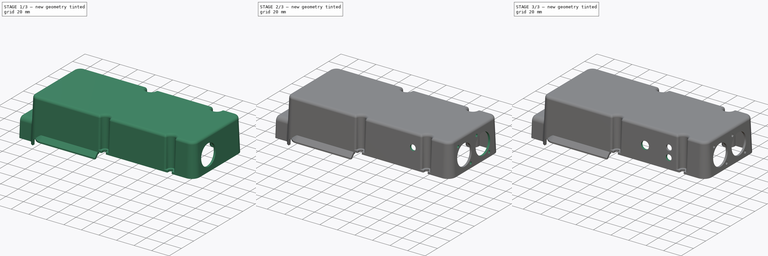
[diagram: build sequence overview — one tinted view per stage of 3, left to right]
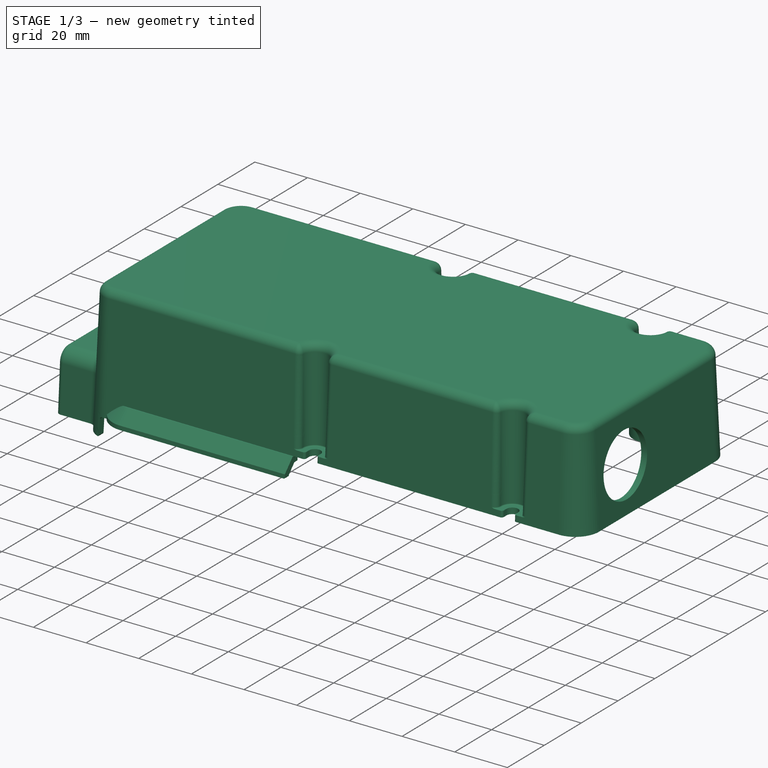
[diagram: stage 1 of 3 — iso view after this stage's code; geometry added in this stage tinted green]
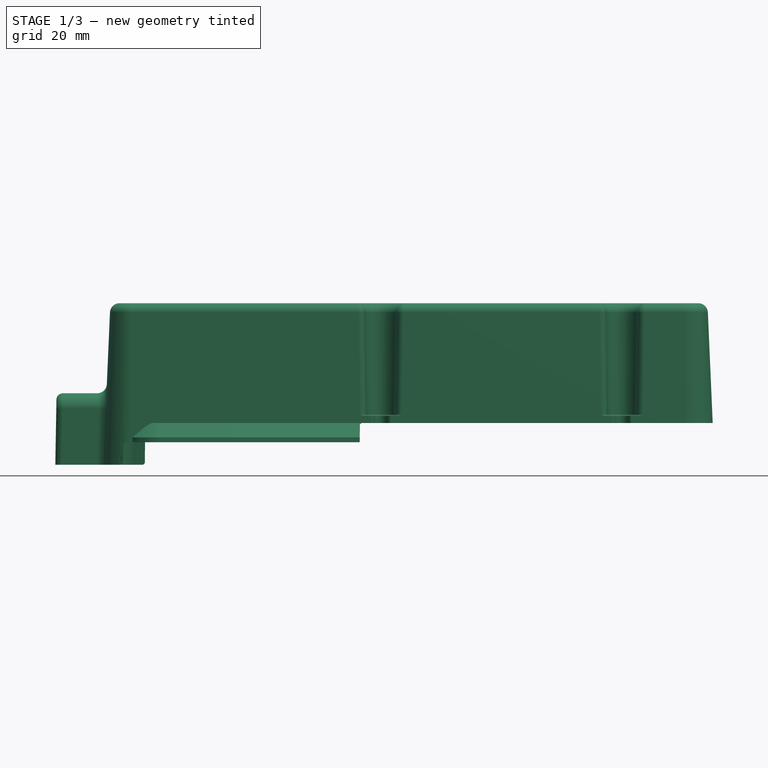
[diagram: stage 1 of 3 — front view after this stage's code; geometry added in this stage tinted green]
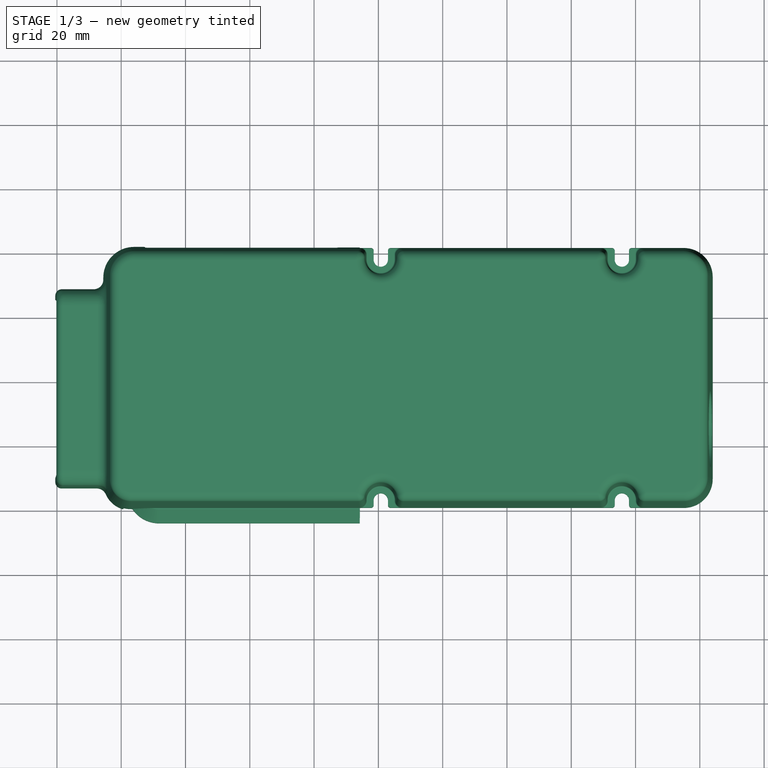
[diagram: stage 1 of 3 — top view after this stage's code; geometry added in this stage tinted green]
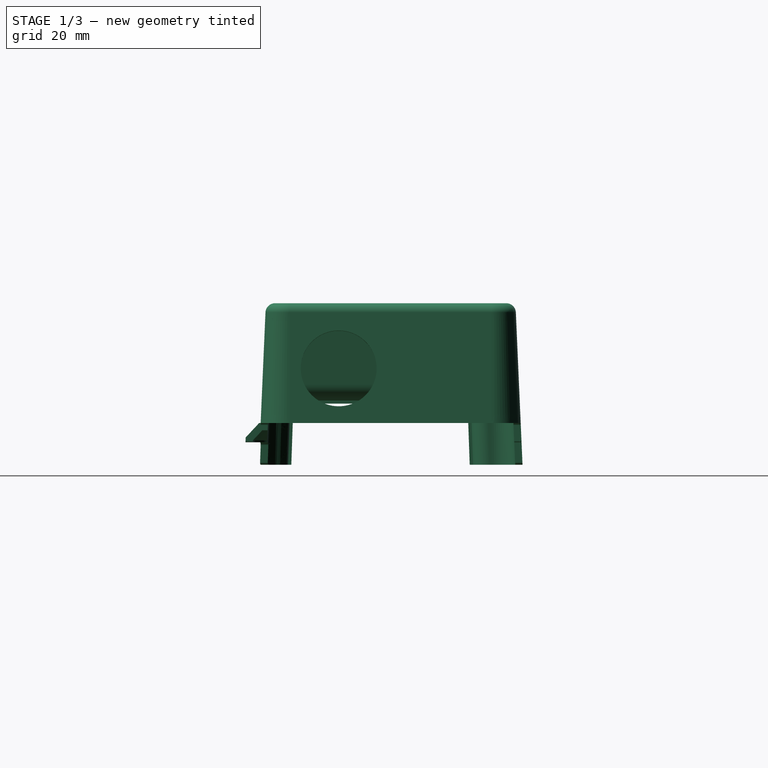
[diagram: stage 1 of 3 — right view after this stage's code; geometry added in this stage tinted green]
FCSTD DOCUMENT  (FreeCAD 0.18R16146 (Git))
Label: TouchPlayer_LargeBack
License: All rights reserved
LicenseURL: http://en.wikipedia.org/wiki/All_rights_reserved
objects: Sketcher::SketchObject×4, PartDesign::Pocket×4, PartDesign::Line×2, PartDesign::LinearPattern×2, Part::Feature×1, PartDesign::FeatureBase×1, PartDesign::PolarPattern×1, PartDesign::MultiTransform×1, PartDesign::Body×1
note: 21 computed .brp shape members not serialized (recipe doc carries the construction recipe); baked Part::Feature solids carry a one-line shape summary decoded from their .brp

FEATURE [Part::Feature] Part__Feature  label="touch 2 large back cabinet"
  shape: bbox 204.5 x 86.18 x 50.47 mm, 231 faces (baked)
FEATURE [PartDesign::FeatureBase] BaseFeature
  BaseFeature = -> Part__Feature
FEATURE [Sketcher::SketchObject] Sketch
  ExternalGeometry = -> [BaseFeature]
  MapMode = 5
  Placement = pos=(83.8402,1.85e-14,3.66054) rot=(0.568768,0.568768,0.594143;2.06939rad)
  Support = -> [BaseFeature]
  sketch-geometry (1):
    g0: Circle CenterX=-15 CenterY=13.336 CenterZ=0 NormalX=0 NormalY=0 NormalZ=1 AngleXU=0 Radius=11.8
  constraints (3):
    c: Diameter(g0) = 23.6
    c: DistanceX(g0,g-1) = 15
    c: DistanceY(g-3,g0) = 17
FEATURE [PartDesign::Pocket] Pocket  label="Trou XLR"
  BaseFeature = -> BaseFeature
  Length = 0
  Length2 = 100
  Profile = -> Sketch
  Type = 3
  UpToFace = -> BaseFeature [Face124]
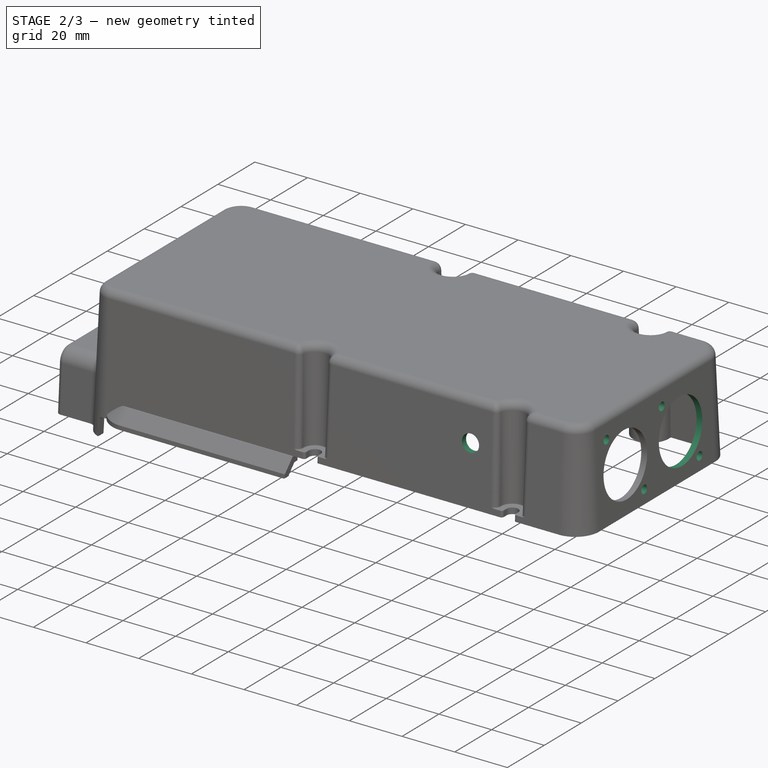
[diagram: stage 2 of 3 — iso view after this stage's code; geometry added in this stage tinted green]
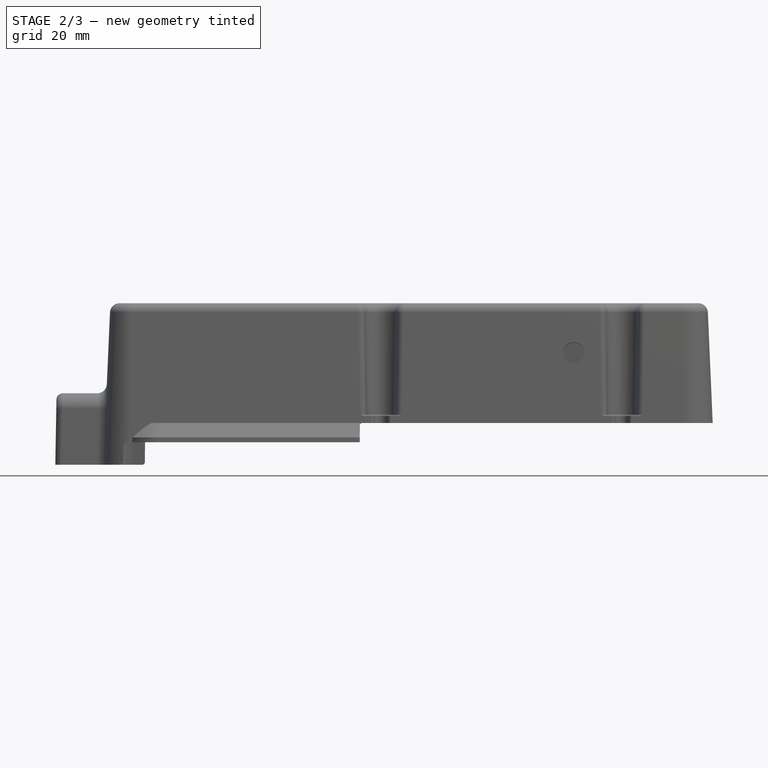
[diagram: stage 2 of 3 — front view after this stage's code; geometry added in this stage tinted green]
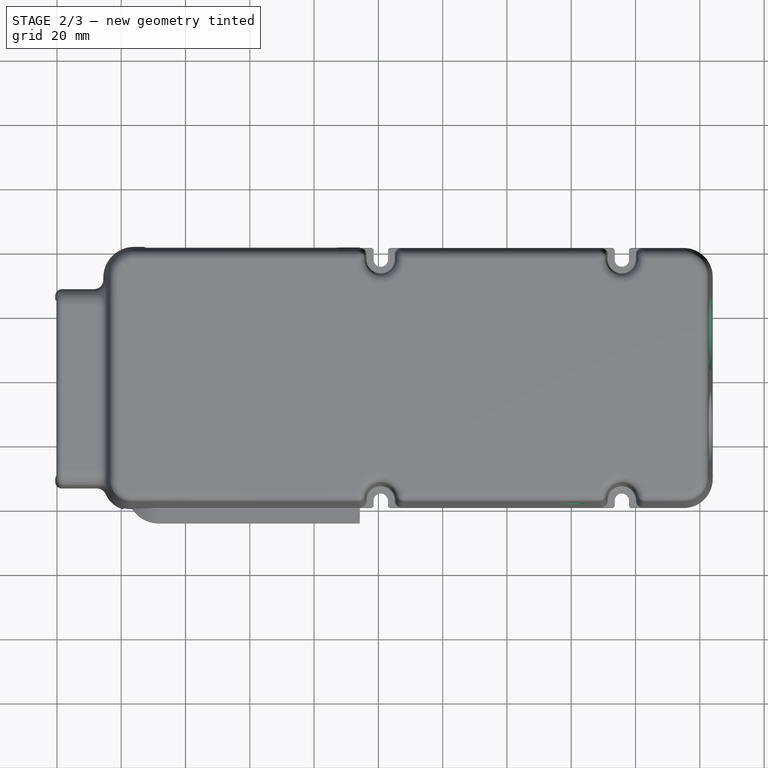
[diagram: stage 2 of 3 — top view after this stage's code; geometry added in this stage tinted green]
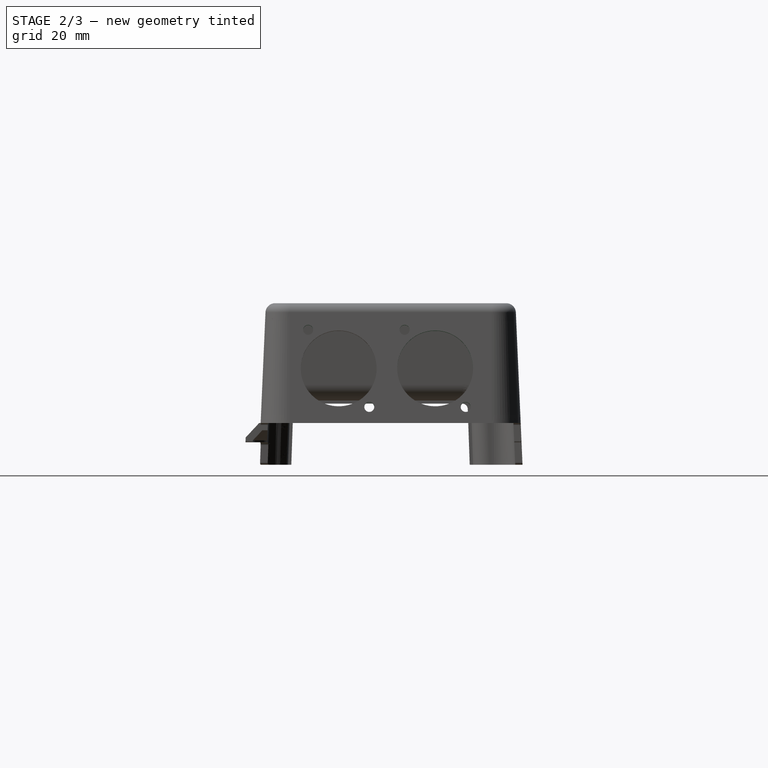
[diagram: stage 2 of 3 — right view after this stage's code; geometry added in this stage tinted green]
FEATURE [Sketcher::SketchObject] Sketch001
  ExternalGeometry = -> [Pocket]
  MapMode = 5
  Placement = pos=(83.8402,1.85e-14,3.66054) rot=(0.568768,0.568768,0.594143;2.06939rad)
  Support = -> [Pocket]
  sketch-geometry (1):
    g0: Circle CenterX=-24.5 CenterY=25.336 CenterZ=0 NormalX=0 NormalY=0 NormalZ=1 AngleXU=0 Radius=1.55
  constraints (3):
    c: DistanceX(g-3,g0) = -9.5
    c: DistanceY(g-3,g0) = 12
    c: Diameter(g0) = 3.1
FEATURE [PartDesign::Pocket] Pocket001  label="Trou vis"
  BaseFeature = -> Pocket
  Length = 0
  Length2 = 100
  Profile = -> Sketch001
  Type = 3
  UpToFace = -> Pocket [Face70]
FEATURE [PartDesign::Line] DatumLine
  AttacherType = Attacher::AttachEngineLine
  MapMode = 19
  Placement = pos=(83.2585,-15,16.9838) rot=(0.568768,0.568768,0.594143;2.06939rad)
  Support = -> [Pocket001]
FEATURE [PartDesign::PolarPattern] PolarPattern
  Angle = 180
  Axis = -> DatumLine
  Occurrences = 2
FEATURE [PartDesign::LinearPattern] LinearPattern
  Direction = -> Sketch [H_Axis]
  Length = 30
  Occurrences = 2
FEATURE [PartDesign::MultiTransform] MultiTransform
  BaseFeature = -> Pocket001
  Originals = -> [Pocket,Pocket001]
  Transformations = -> [PolarPattern,LinearPattern]
FEATURE [Sketcher::SketchObject] Sketch003
  ExternalGeometry = -> [MultiTransform]
  MapMode = 5
  Placement = pos=(1.6e-15,-39.2095,1.71192) rot=(1,0,0;1.52716rad)
  Support = -> [MultiTransform]
  sketch-geometry (1):
    g0: Circle CenterX=40.7954 CenterY=20.2001 CenterZ=0 NormalX=0 NormalY=0 NormalZ=1 AngleXU=0 Radius=3.25
  constraints (3):
    c: Diameter(g0) = 6.5
    c: DistanceX(g0,g-3) = 8
    c: DistanceY(g0,g-3) = 12.5
FEATURE [PartDesign::Pocket] Pocket002  label="Trou RCA"
  BaseFeature = -> MultiTransform
  Length = 0
  Length2 = 100
  Profile = -> Sketch003
  Type = 3
  UpToFace = -> MultiTransform [Face64]
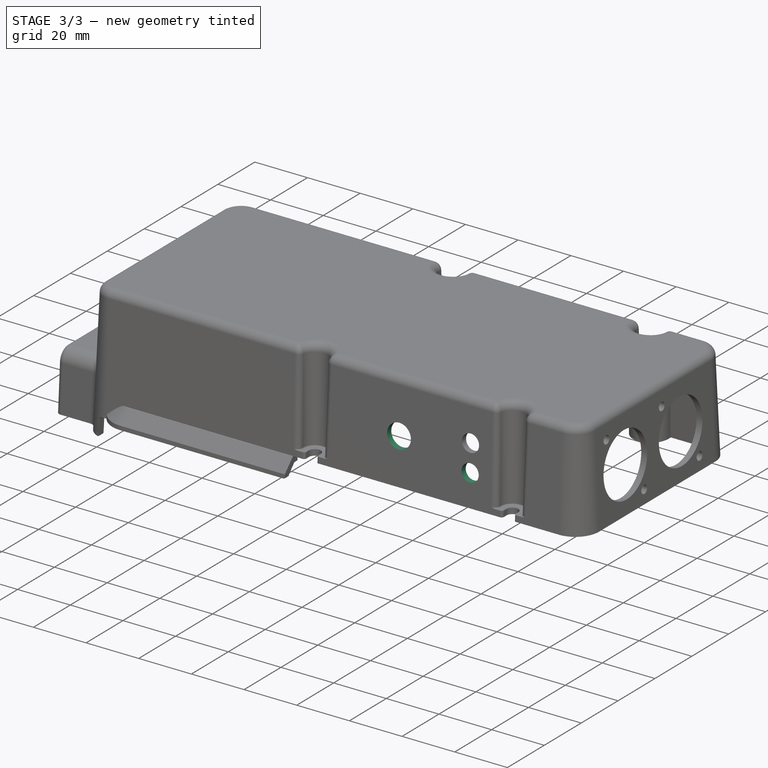
[diagram: stage 3 of 3 — iso view after this stage's code; geometry added in this stage tinted green]
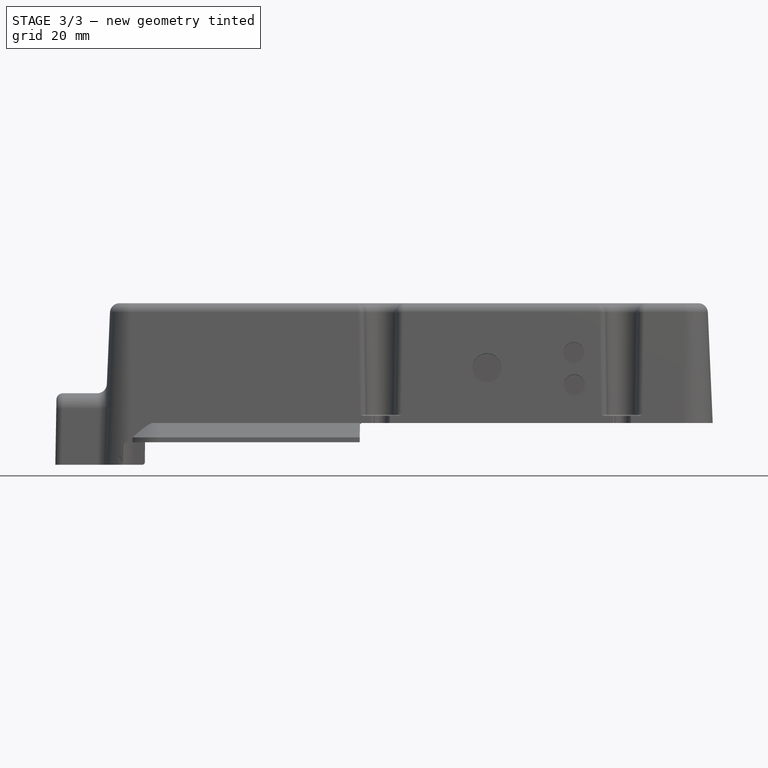
[diagram: stage 3 of 3 — front view after this stage's code; geometry added in this stage tinted green]
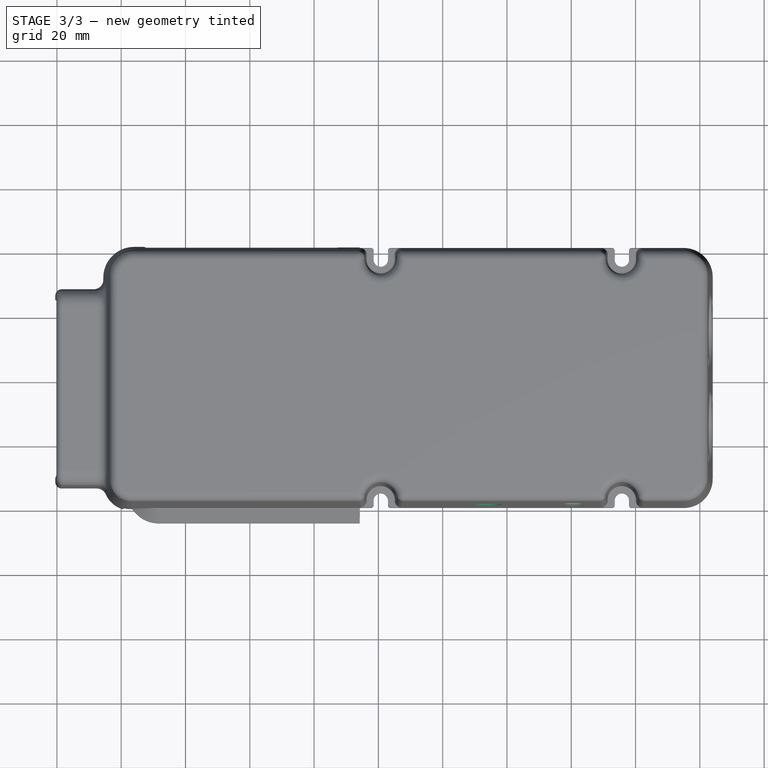
[diagram: stage 3 of 3 — top view after this stage's code; geometry added in this stage tinted green]
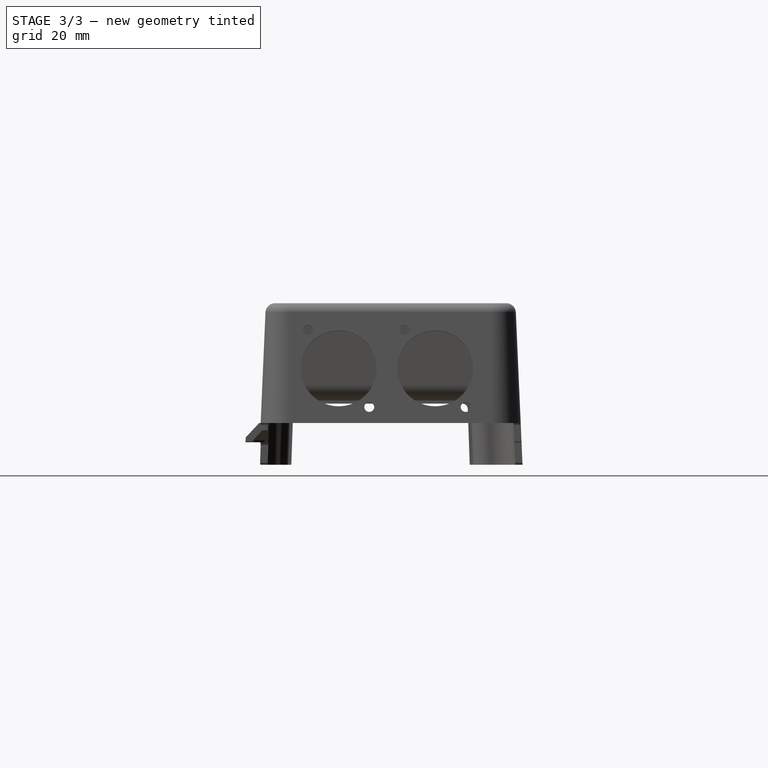
[diagram: stage 3 of 3 — right view after this stage's code; geometry added in this stage tinted green]
FEATURE [PartDesign::Line] DatumLine001
  AttacherType = Attacher::AttachEngineLine
  MapMode = 24
  Placement = pos=(49.1761,-38.9981,6.55284) rot=(0.981964,0.189015,0.004441;3.09545rad)
  Support = -> [Pocket002]
FEATURE [PartDesign::LinearPattern] LinearPattern001
  BaseFeature = -> Pocket002
  Direction = -> DatumLine001
  Length = 10
  Occurrences = 2
  Originals = -> [Pocket002]
FEATURE [Sketcher::SketchObject] Sketch004
  ExternalGeometry = -> [LinearPattern001]
  MapMode = 5
  Placement = pos=(1.6e-15,-39.2095,1.71192) rot=(1,0,0;1.52716rad)
  Support = -> [LinearPattern001]
  sketch-geometry (2):
    g0: Circle CenterX=13.7954 CenterY=15.4933 CenterZ=0 NormalX=0 NormalY=0 NormalZ=1 AngleXU=0 Radius=4.5
    g1: LineSegment [constr] StartX=13.7954 StartY=32.7001 StartZ=0 EndX=13.7954 EndY=-1.71355 EndZ=0
  constraints (6):
    c: Diameter(g0) = 9
    c: Vertical(g1)
    c: Symmetric(g1,g1,g0)
    c: DistanceY(g1,g-3) = 0
    c: DistanceY(g1,g-4) = 0
    c: DistanceX(g1,g-3) = 35
FEATURE [PartDesign::Pocket] Pocket003
  BaseFeature = -> LinearPattern001
  Length = 0
  Length2 = 100
  Profile = -> Sketch004
  Type = 3
  UpToFace = -> LinearPattern001 [Face64]
FEATURE [PartDesign::Body] Body
  BaseFeature = -> Part__Feature
  Group = -> [BaseFeature,Sketch,Pocket,Sketch001,Pocket001,DatumLine,MultiTransform,PolarPattern,LinearPattern,Sketch003,Pocket002,DatumLine001,LinearPattern001,Sketch004,Pocket003]
  Origin = -> Origin
  Tip = -> Pocket003
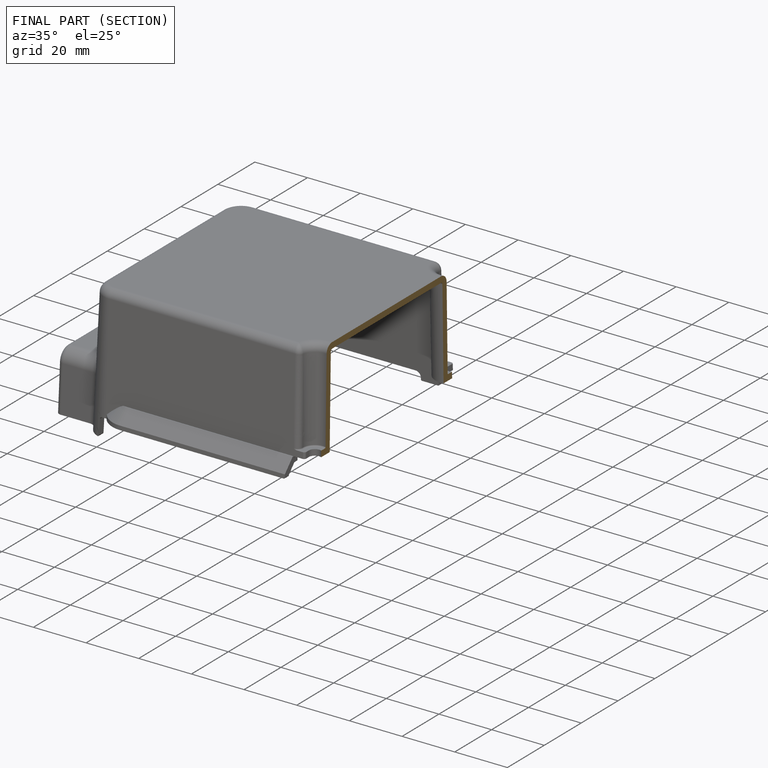
[diagram: finished part — half-section view (interior)]
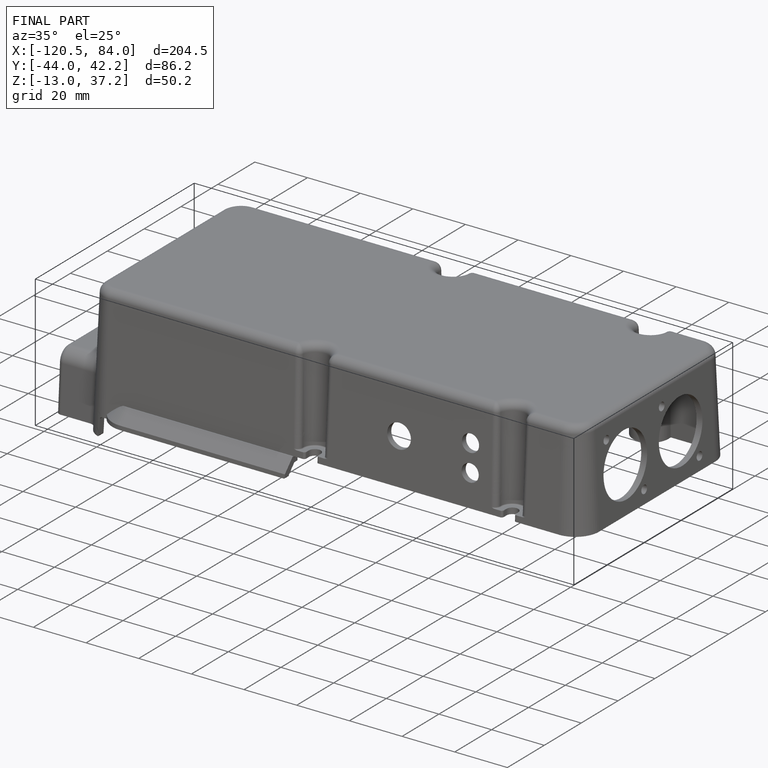
[diagram: finished part — iso view with bounding-box wireframe]
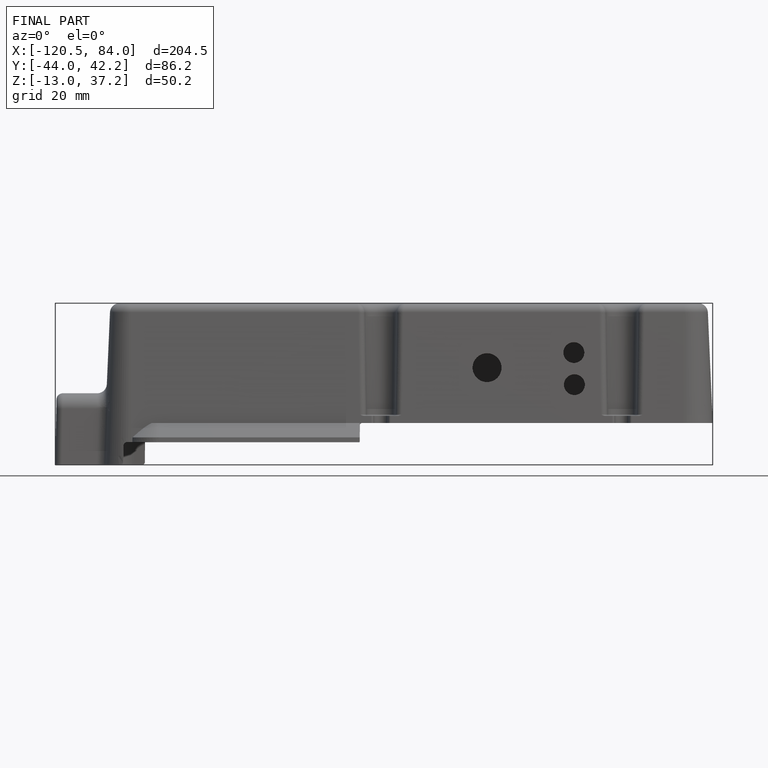
[diagram: finished part — front view with bounding-box wireframe]
